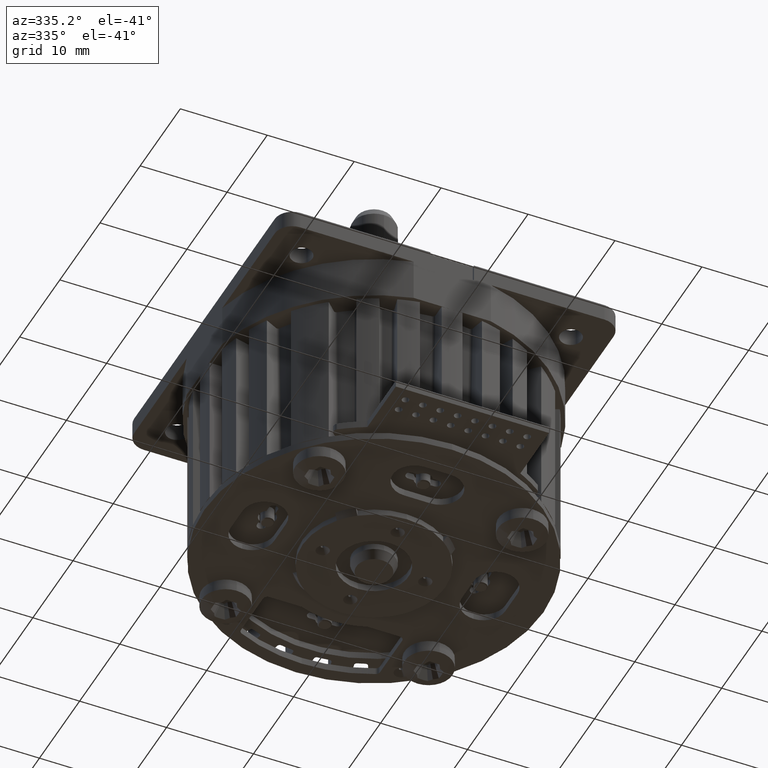
[diagram: clean part render]
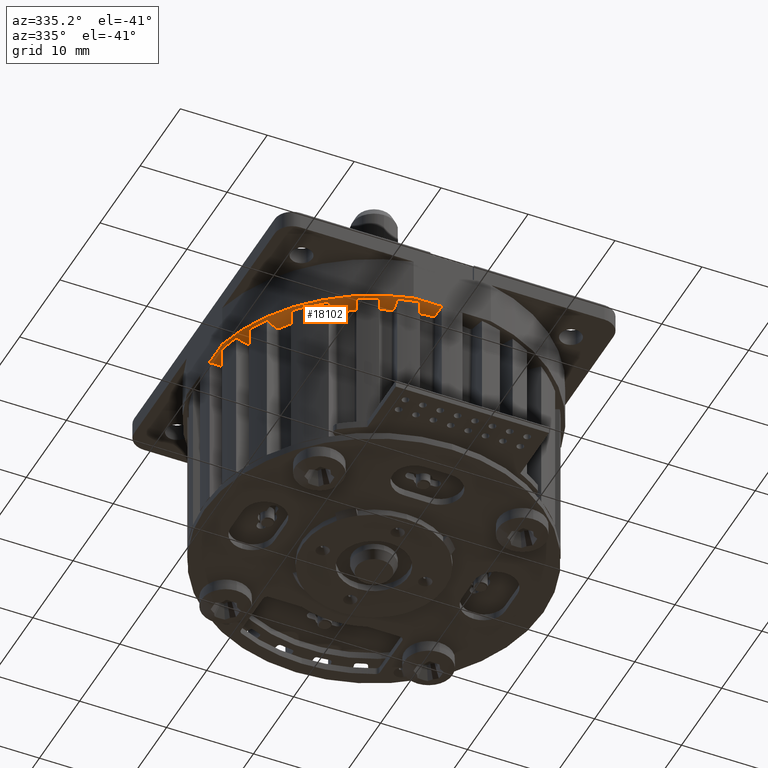
[diagram: same view with one face highlighted and labeled with its STEP entity id]
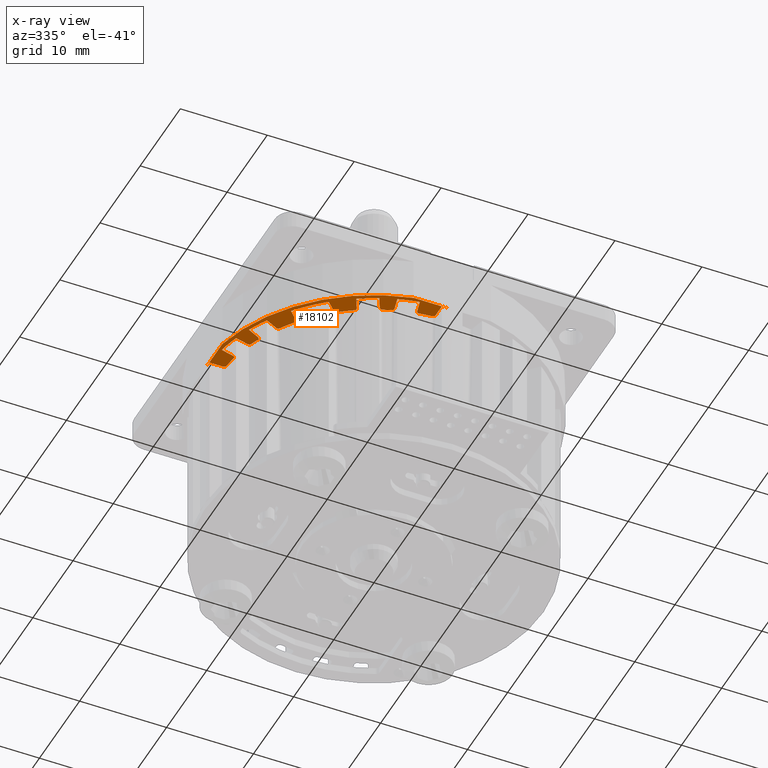
[diagram: x-ray of the same camera — body ghosted, the highlighted face saturated]
A machine part, auxiliary view. The second image highlights one B-rep face of the part: STEP entity #18102.
The next image is the same camera in x-ray: the body ghosted, the highlighted face saturated — about 0% of this face is hidden behind the body in this view.
In plain terms, the highlighted planar face has unit normal (0, 0, -1).
Its self-contained STEP definition (entity closure, byte-faithful):
#10437=CARTESIAN_POINT('',(-1.073479310697E1,-1.407234471778E1,
-4.999999638060E0));
#10438=CARTESIAN_POINT('',(-1.076387367828E1,-1.405019335004E1,
-4.999999638060E0));
#10439=CARTESIAN_POINT('',(-1.082617487131E1,-1.401871917246E1,
-5.000000172804E0));
#10440=CARTESIAN_POINT('',(-1.093729713080E1,-1.400431010619E1,
-4.999999938095E0));
#10441=CARTESIAN_POINT('',(-1.104553720968E1,-1.403341324764E1,
-5.000000074816E0));
#10442=CARTESIAN_POINT('',(-1.110303977929E1,-1.407297289651E1,
-4.999999866699E0));
#10443=CARTESIAN_POINT('',(-1.112889260806E1,-1.409883608382E1,
-4.999999866699E0));
#10461=CARTESIAN_POINT('',(0.E0,0.E0,-5.E0));
#10462=DIRECTION('',(0.E0,0.E0,-1.E0));
#10463=DIRECTION('',(-2.222048604329E-1,-9.75E-1,0.E0));
#10464=AXIS2_PLACEMENT_3D('',#10461,#10462,#10463);
#10466=CARTESIAN_POINT('',(0.E0,0.E0,-5.E0));
#10467=DIRECTION('',(0.E0,0.E0,1.E0));
#10468=DIRECTION('',(-6.153846153846E-2,-9.981047128190E-1,0.E0));
#10469=AXIS2_PLACEMENT_3D('',#10466,#10467,#10468);
#10471=CARTESIAN_POINT('',(0.E0,0.E0,-5.E0));
#10472=DIRECTION('',(0.E0,0.E0,1.E0));
#10473=DIRECTION('',(-1.619417234328E-1,-9.868003233743E-1,0.E0));
#10474=AXIS2_PLACEMENT_3D('',#10471,#10472,#10473);
#10476=DIRECTION('',(2.436394881490E-1,9.698658669190E-1,2.773570252438E-8));
#10477=VECTOR('',#10476,1.526227856595E0);
#10478=CARTESIAN_POINT('',(-3.577642763511E0,-1.916899768524E1,-5.E0));
#10479=LINE('',#10478,#10477);
#10480=CARTESIAN_POINT('',(0.E0,0.E0,-5.E0));
#10481=DIRECTION('',(0.E0,0.E0,1.E0));
#10482=DIRECTION('',(-3.028377230869E-1,-9.530421362540E-1,0.E0));
#10483=AXIS2_PLACEMENT_3D('',#10480,#10481,#10482);
#10485=DIRECTION('',(-2.435905350833E-1,-9.698781630792E-1,2.715573158838E-10));
#10486=VECTOR('',#10485,1.526225872660E0);
#10487=CARTESIAN_POINT('',(-5.533561423215E0,-1.710406851113E1,
-5.000000000414E0));
#10488=LINE('',#10487,#10486);
#10489=CARTESIAN_POINT('',(0.E0,0.E0,-5.E0));
#10490=DIRECTION('',(0.E0,0.E0,1.E0));
#10491=DIRECTION('',(-3.733054635073E-1,-9.277084838006E-1,0.E0));
#10492=AXIS2_PLACEMENT_3D('',#10489,#10490,#10491);
#10494=DIRECTION('',(4.493415442844E-1,8.933600486814E-1,2.773570252438E-8));
#10495=VECTOR('',#10494,1.526227856595E0);
#10496=CARTESIAN_POINT('',(-7.673068830521E0,-1.792690756160E1,-5.E0));
#10497=LINE('',#10496,#10495);
#10498=CARTESIAN_POINT('',(0.E0,0.E0,-5.E0));
#10499=DIRECTION('',(0.E0,0.E0,1.E0));
#10500=DIRECTION('',(-5.034441108978E-1,-8.640277930728E-1,0.E0));
#10501=AXIS2_PLACEMENT_3D('',#10498,#10499,#10500);
#10503=DIRECTION('',(-4.492964524912E-1,-8.933827274907E-1,2.715573158838E-10));
#10504=VECTOR('',#10503,1.526225872660E0);
#10505=CARTESIAN_POINT('',(-9.131432292221E0,-1.548503813204E1,
-5.000000000414E0));
#10506=LINE('',#10505,#10504);
#10507=CARTESIAN_POINT('',(0.E0,0.E0,-5.E0));
#10508=DIRECTION('',(0.E0,0.E0,1.E0));
#10509=DIRECTION('',(-6.065080698644E-1,-7.950773303204E-1,0.E0));
#10510=AXIS2_PLACEMENT_3D('',#10507,#10508,#10509);
#10512=DIRECTION('',(7.071374656646E-1,7.070760953769E-1,8.611779341366E-8));
#10513=VECTOR('',#10512,1.547895275173E0);
#10514=CARTESIAN_POINT('',(-1.222346735006E1,-1.519331583105E1,-5.E0));
#10515=LINE('',#10514,#10513);
#10516=CARTESIAN_POINT('',(0.E0,0.E0,-5.E0));
#10517=DIRECTION('',(0.E0,0.E0,1.E0));
#10518=DIRECTION('',(-7.791444015921E-1,-6.268444794904E-1,0.E0));
#10519=AXIS2_PLACEMENT_3D('',#10516,#10517,#10518);
#10521=DIRECTION('',(-7.070760945996E-1,-7.071374664419E-1,6.933917120530E-10));
#10522=VECTOR('',#10521,1.547889072592E0);
#10523=CARTESIAN_POINT('',(-1.409884047073E1,-1.112889699294E1,
-5.000000001073E0));
#10524=LINE('',#10523,#10522);
#10525=CARTESIAN_POINT('',(0.E0,0.E0,-5.E0));
#10526=DIRECTION('',(0.E0,0.E0,1.E0));
#10527=DIRECTION('',(-8.528190244465E-1,-5.222065793745E-1,0.E0));
#10528=AXIS2_PLACEMENT_3D('',#10525,#10526,#10527);
#10530=DIRECTION('',(8.933838182880E-1,4.492942835393E-1,3.333637125151E-8));
#10531=VECTOR('',#10530,1.526228255814E0);
#10532=CARTESIAN_POINT('',(-1.684854196492E1,-9.817160162507E0,-5.E0));
#10533=LINE('',#10532,#10531);
#10534=CARTESIAN_POINT('',(0.E0,0.E0,-5.E0));
#10535=DIRECTION('',(0.E0,0.E0,1.E0));
#10536=DIRECTION('',(-9.193285929025E-1,-3.934907092575E-1,0.E0));
#10537=AXIS2_PLACEMENT_3D('',#10534,#10535,#10536);
#10539=DIRECTION('',(-8.933589575720E-1,-4.493437135710E-1,2.908516783414E-10));
#10540=VECTOR('',#10539,1.526225873781E0);
#10541=CARTESIAN_POINT('',(-1.656344000598E1,-6.987268828648E0,
-5.000000000444E0));
#10542=LINE('',#10541,#10540);
#10543=CARTESIAN_POINT('',(0.E0,0.E0,-5.E0));
#10544=DIRECTION('',(0.E0,0.E0,1.E0));
#10545=DIRECTION('',(-9.461962167610E-1,-3.235934476889E-1,0.E0));
#10546=AXIS2_PLACEMENT_3D('',#10543,#10544,#10545);
#10548=DIRECTION('',(9.698787544643E-1,2.435881804167E-1,3.333637125151E-8));
#10549=VECTOR('',#10548,1.526228255814E0);
#10550=CARTESIAN_POINT('',(-1.858432165695E1,-5.905335600195E0,-5.E0));
#10551=LINE('',#10550,#10549);
#10552=CARTESIAN_POINT('',(0.E0,0.E0,-5.E0));
#10553=DIRECTION('',(0.E0,0.E0,1.E0));
#10554=DIRECTION('',(-9.830255223199E-1,-1.834688596672E-1,0.E0));
#10555=AXIS2_PLACEMENT_3D('',#10552,#10553,#10554);
#10557=DIRECTION('',(-9.698652753022E-1,-2.436418432104E-1,2.908534241742E-10));
#10558=VECTOR('',#10557,1.526225873781E0);
#10559=CARTESIAN_POINT('',(-1.768876420799E1,-3.205790278468E0,
-5.000000000444E0));
#10560=LINE('',#10559,#10558);
#10561=CARTESIAN_POINT('',(0.E0,0.E0,-5.E0));
#10562=DIRECTION('',(0.E0,0.E0,1.E0));
#10563=DIRECTION('',(-9.965214531774E-1,-8.333662674485E-2,0.E0));
#10564=AXIS2_PLACEMENT_3D('',#10561,#10562,#10563);
#10566=DIRECTION('',(9.999999996173E-1,-2.766475956627E-5,3.333637008763E-8));
#10567=VECTOR('',#10566,1.526228255814E0);
#10568=CARTESIAN_POINT('',(-1.946304189997E1,-1.2E0,-5.E0));
#10569=LINE('',#10568,#10567);
#10570=CARTESIAN_POINT('',(0.E0,0.E0,-5.E0));
#10571=DIRECTION('',(0.E0,0.E0,1.E0));
#10572=DIRECTION('',(-1.E0,-1.530248892080E-13,0.E0));
#10573=AXIS2_PLACEMENT_3D('',#10570,#10571,#10572);
#11905=CARTESIAN_POINT('',(-9.131432292221E0,-1.548503813204E1,
-5.000000000414E0));
#11906=CARTESIAN_POINT('',(-9.114399088966E0,-1.545118245200E1,
-5.000000000414E0));
#11907=CARTESIAN_POINT('',(-9.094754099932E0,-1.538179465488E1,
-5.000000007280E0));
#11908=CARTESIAN_POINT('',(-9.103343199877E0,-1.526579339755E1,
-4.999999973899E0));
#11909=CARTESIAN_POINT('',(-9.157204056181E0,-1.516273167602E1,
-5.000000097123E0));
#11910=CARTESIAN_POINT('',(-9.210427976773E0,-1.511412935526E1,
-4.999999790780E0));
#11911=CARTESIAN_POINT('',(-9.242715429713E0,-1.509434100489E1,
-4.999999790780E0));
#11937=CARTESIAN_POINT('',(-6.607263304628E0,-1.641983527634E1,
-4.999999789654E0));
#11938=CARTESIAN_POINT('',(-6.642409545309E0,-1.640570868908E1,
-4.999999789654E0));
#11939=CARTESIAN_POINT('',(-6.713178183967E0,-1.639195923733E1,
-5.000000099172E0));
#11940=CARTESIAN_POINT('',(-6.828033291732E0,-1.641017940111E1,
-4.999999968415E0));
#11941=CARTESIAN_POINT('',(-6.926269490864E0,-1.647245169778E1,
-5.000000027166E0));
#11942=CARTESIAN_POINT('',(-6.970249933340E0,-1.652958405164E1,
-4.999999957669E0));
#11943=CARTESIAN_POINT('',(-6.987271248508E0,-1.656343656933E1,
-4.999999957669E0));
#11967=CARTESIAN_POINT('',(-5.533561423215E0,-1.710406851113E1,
-5.000000000414E0));
#11968=CARTESIAN_POINT('',(-5.524323822432E0,-1.706731250733E1,
-5.000000000414E0));
#11969=CARTESIAN_POINT('',(-5.520288427322E0,-1.699531037147E1,
-5.000000007280E0));
#11970=CARTESIAN_POINT('',(-5.553975564210E0,-1.688397645413E1,
-4.999999973899E0));
#11971=CARTESIAN_POINT('',(-5.629021494688E0,-1.679514617435E1,
-5.000000097123E0));
#11972=CARTESIAN_POINT('',(-5.691565878719E0,-1.675932479341E1,
-4.999999790780E0));
#11973=CARTESIAN_POINT('',(-5.727392440135E0,-1.674705630024E1,
-4.999999790780E0));
#11999=CARTESIAN_POINT('',(-2.866262919152E0,-1.746572230848E1,
-4.999999789654E0));
#12000=CARTESIAN_POINT('',(-2.903644344086E0,-1.745960285005E1,
-4.999999789654E0));
#12001=CARTESIAN_POINT('',(-2.975707994743E0,-1.746162222985E1,
-5.000000099172E0));
#12002=CARTESIAN_POINT('',(-3.083822414020E0,-1.750445845859E1,
-4.999999968415E0));
#12003=CARTESIAN_POINT('',(-3.166108486738E0,-1.758666059961E1,
-5.000000027166E0));
#12004=CARTESIAN_POINT('',(-3.196566700887E0,-1.765201105768E1,
-4.999999957669E0));
#12005=CARTESIAN_POINT('',(-3.205793389732E0,-1.768876138199E1,
-4.999999957669E0));
#12029=CARTESIAN_POINT('',(-1.200038517307E0,-1.793681602780E1,
-5.000000000414E0));
#12030=CARTESIAN_POINT('',(-1.200033541119E0,-1.789891699009E1,
-5.000000000414E0));
#12031=CARTESIAN_POINT('',(-1.213660525508E0,-1.782810105065E1,
-5.000000007280E0));
#12032=CARTESIAN_POINT('',(-1.273455350435E0,-1.772832809212E1,
-4.999999973899E0));
#12033=CARTESIAN_POINT('',(-1.367880687921E0,-1.766045640489E1,
-5.000000097123E0));
#12034=CARTESIAN_POINT('',(-1.437267361847E0,-1.764095100082E1,
-4.999999790780E0));
#12035=CARTESIAN_POINT('',(-1.475003330277E0,-1.763778002080E1,
-4.999999790780E0));
#12045=DIRECTION('',(-2.523696400133E-5,9.999999996815E-1,-2.715573158838E-10));
#12046=VECTOR('',#12045,1.526225872660E0);
#12047=CARTESIAN_POINT('',(-1.2E0,-1.946304189997E1,-5.E0));
#12048=LINE('',#12047,#12046);
#12187=DIRECTION('',(1.E0,0.E0,0.E0));
#12188=VECTOR('',#12187,4.444097208658E0);
#12189=CARTESIAN_POINT('',(-4.444097208658E0,-1.95E1,-5.E0));
#12190=LINE('',#12189,#12188);
#12459=DIRECTION('',(0.E0,-1.E0,0.E0));
#12460=VECTOR('',#12459,4.444097208657E0);
#12461=CARTESIAN_POINT('',(-1.95E1,-1.096698333053E-12,-5.E0));
#12462=LINE('',#12461,#12460);
#12499=CARTESIAN_POINT('',(-1.763777902467E1,-1.475003872579E0,
-4.999999769317E0));
#12500=CARTESIAN_POINT('',(-1.764095204039E1,-1.437258002967E0,
-4.999999769317E0));
#12501=CARTESIAN_POINT('',(-1.766046566855E1,-1.367857256187E0,
-5.000000108920E0));
#12502=CARTESIAN_POINT('',(-1.772834984643E1,-1.273436221253E0,
-4.999999964805E0));
#12503=CARTESIAN_POINT('',(-1.782812168208E1,-1.213652941904E0,
-5.000000031861E0));
#12504=CARTESIAN_POINT('',(-1.789892277377E1,-1.200037669310E0,
-4.999999949121E0));
#12505=CARTESIAN_POINT('',(-1.793681364474E1,-1.200042222738E0,
-4.999999949121E0));
#12529=CARTESIAN_POINT('',(-1.768876420799E1,-3.205790278468E0,
-5.000000000444E0));
#12530=CARTESIAN_POINT('',(-1.765200566253E1,-3.196562796730E0,
-5.000000000444E0));
#12531=CARTESIAN_POINT('',(-1.758664183545E1,-3.166099112525E0,
-5.000000007984E0));
#12532=CARTESIAN_POINT('',(-1.750444229618E1,-3.083797785321E0,
-4.999999971389E0));
#12533=CARTESIAN_POINT('',(-1.746161845009E1,-2.975683109804E0,
-5.000000106459E0));
#12534=CARTESIAN_POINT('',(-1.745960511244E1,-2.903635303602E0,
-4.999999770669E0));
#12535=CARTESIAN_POINT('',(-1.746572125256E1,-2.866263505977E0,
-4.999999770669E0));
#12561=CARTESIAN_POINT('',(-1.674705520200E1,-5.727392723425E0,
-4.999999769317E0));
#12562=CARTESIAN_POINT('',(-1.675932808162E1,-5.691557055058E0,
-4.999999769317E0));
#12563=CARTESIAN_POINT('',(-1.679516086723E1,-5.629001025670E0,
-5.000000108920E0));
#12564=CARTESIAN_POINT('',(-1.688400221318E1,-5.553962311029E0,
-4.999999964805E0));
#12565=CARTESIAN_POINT('',(-1.699533222879E1,-5.520286098323E0,
-5.000000031861E0));
#12566=CARTESIAN_POINT('',(-1.706731711107E1,-5.524329235240E0,
-4.999999949121E0));
#12567=CARTESIAN_POINT('',(-1.710406529717E1,-5.533564436460E0,
-4.999999949121E0));
#12591=CARTESIAN_POINT('',(-1.656344000598E1,-6.987268828648E0,
-5.000000000444E0));
#12592=CARTESIAN_POINT('',(-1.652957963809E1,-6.970244946292E0,
-5.000000000444E0));
#12593=CARTESIAN_POINT('',(-1.647243543044E1,-6.926256249137E0,
-5.000000007984E0));
#12594=CARTESIAN_POINT('',(-1.641016900053E1,-6.828005730451E0,
-4.999999971389E0));
#12595=CARTESIAN_POINT('',(-1.639196097708E1,-6.713153073808E0,
-5.000000106459E0));
#12596=CARTESIAN_POINT('',(-1.640571286910E1,-6.642401216073E0,
-4.999999770669E0));
#12597=CARTESIAN_POINT('',(-1.641983411783E1,-6.607263646978E0,
-4.999999770669E0));
#12623=CARTESIAN_POINT('',(-1.509433987131E1,-9.242715466608E0,
-4.999999769317E0));
#12624=CARTESIAN_POINT('',(-1.511413448910E1,-9.210420082914E0,
-4.999999769317E0));
#12625=CARTESIAN_POINT('',(-1.516275048023E1,-9.157187285277E0,
-5.000000108920E0));
#12626=CARTESIAN_POINT('',(-1.526582142733E1,-9.103335885040E0,
-4.999999964805E0));
#12627=CARTESIAN_POINT('',(-1.538181649387E1,-9.094756595051E0,
-5.000000031861E0));
#12628=CARTESIAN_POINT('',(-1.545118576410E1,-9.114405375689E0,
-4.999999949121E0));
#12629=CARTESIAN_POINT('',(-1.548503433816E1,-9.131434531794E0,
-4.999999949121E0));
#12653=CARTESIAN_POINT('',(-1.409884047073E1,-1.112889699294E1,
-5.000000001073E0));
#12654=CARTESIAN_POINT('',(-1.407297093583E1,-1.110304102680E1,
-5.000000001073E0));
#12655=CARTESIAN_POINT('',(-1.403340372550E1,-1.104551983865E1,
-5.000000012355E0));
#12656=CARTESIAN_POINT('',(-1.400430841603E1,-1.093727336433E1,
-4.999999955146E0));
#12657=CARTESIAN_POINT('',(-1.401872656913E1,-1.082615471496E1,
-5.000000167061E0));
#12658=CARTESIAN_POINT('',(-1.405019827594E1,-1.076386763440E1,
-4.999999640095E0));
#12659=CARTESIAN_POINT('',(-1.407234429291E1,-1.073479366467E1,
-4.999999640095E0));
#16156=CARTESIAN_POINT('',(-3.577642763511E0,-1.916899768524E1,-5.E0));
#16158=VERTEX_POINT('',#16156);
#16177=CARTESIAN_POINT('',(-1.2E0,-1.946304189997E1,-5.E0));
#16179=VERTEX_POINT('',#16177);
#16189=CARTESIAN_POINT('',(-1.200038517307E0,-1.793681602780E1,
-5.000000000414E0));
#16191=VERTEX_POINT('',#16189);
#16206=CARTESIAN_POINT('',(-7.673068830521E0,-1.792690756160E1,-5.E0));
#16208=VERTEX_POINT('',#16206);
#16217=CARTESIAN_POINT('',(-9.817160162507E0,-1.684854196492E1,-5.E0));
#16219=VERTEX_POINT('',#16217);
#16222=CARTESIAN_POINT('',(-6.987271248508E0,-1.656343656933E1,
-4.999999957669E0));
#16224=VERTEX_POINT('',#16222);
#16225=CARTESIAN_POINT('',(-9.131432292221E0,-1.548503813204E1,
-5.000000000414E0));
#16227=VERTEX_POINT('',#16225);
#16229=CARTESIAN_POINT('',(-5.905335600195E0,-1.858432165695E1,-5.E0));
#16231=VERTEX_POINT('',#16229);
#16236=CARTESIAN_POINT('',(-3.205793389732E0,-1.768876138199E1,
-4.999999957669E0));
#16238=VERTEX_POINT('',#16236);
#16239=CARTESIAN_POINT('',(-5.533561423215E0,-1.710406851113E1,
-5.000000000414E0));
#16241=VERTEX_POINT('',#16239);
#16505=CARTESIAN_POINT('',(-1.95E1,-1.096698333053E-12,-5.E0));
#16506=VERTEX_POINT('',#16505);
#16507=CARTESIAN_POINT('',(-1.946304189997E1,-1.2E0,-5.E0));
#16508=VERTEX_POINT('',#16507);
#16555=CARTESIAN_POINT('',(8.760903243403E-14,-1.95E1,-5.E0));
#16556=VERTEX_POINT('',#16555);
#16680=VERTEX_POINT('',#12529);
#16681=VERTEX_POINT('',#12535);
#16682=CARTESIAN_POINT('',(-4.444097208658E0,-1.95E1,-5.E0));
#16683=CARTESIAN_POINT('',(-1.95E1,-4.444097208658E0,-5.E0));
#16684=VERTEX_POINT('',#16682);
#16685=VERTEX_POINT('',#16683);
#16694=CARTESIAN_POINT('',(-1.763778973217E1,-1.475004772679E0,-5.E0));
#16695=VERTEX_POINT('',#16694);
#16696=CARTESIAN_POINT('',(-1.793681364474E1,-1.200042222738E0,
-4.999999949121E0));
#16697=VERTEX_POINT('',#16696);
#16698=CARTESIAN_POINT('',(-1.916899768524E1,-3.577642763511E0,-5.E0));
#16699=VERTEX_POINT('',#16698);
#16700=CARTESIAN_POINT('',(-1.858432165695E1,-5.905335600195E0,-5.E0));
#16701=VERTEX_POINT('',#16700);
#16702=CARTESIAN_POINT('',(-1.710406529717E1,-5.533564436460E0,
-4.999999949121E0));
#16703=VERTEX_POINT('',#16702);
#16704=VERTEX_POINT('',#12561);
#16705=CARTESIAN_POINT('',(-1.641984436748E1,-6.607266958697E0,-5.E0));
#16706=VERTEX_POINT('',#16705);
#16707=VERTEX_POINT('',#12591);
#16708=CARTESIAN_POINT('',(-1.792690756160E1,-7.673068830520E0,-5.E0));
#16709=VERTEX_POINT('',#16708);
#16710=CARTESIAN_POINT('',(-1.684854196492E1,-9.817160162507E0,-5.E0));
#16711=VERTEX_POINT('',#16710);
#16712=CARTESIAN_POINT('',(-1.548503433816E1,-9.131434531794E0,
-4.999999949121E0));
#16713=VERTEX_POINT('',#16712);
#16714=VERTEX_POINT('',#12623);
#16715=CARTESIAN_POINT('',(-1.407235812966E1,-1.073480332312E1,-5.E0));
#16716=VERTEX_POINT('',#16715);
#16717=VERTEX_POINT('',#12653);
#16718=CARTESIAN_POINT('',(-1.519331583105E1,-1.222346735006E1,-5.E0));
#16719=VERTEX_POINT('',#16718);
#16720=CARTESIAN_POINT('',(-1.222346735006E1,-1.519331583105E1,-5.E0));
#16721=VERTEX_POINT('',#16720);
#16722=CARTESIAN_POINT('',(-1.112889260806E1,-1.409883608382E1,
-4.999999866699E0));
#16723=VERTEX_POINT('',#16722);
#16724=VERTEX_POINT('',#10437);
#16725=CARTESIAN_POINT('',(-9.242721081814E0,-1.509434903265E1,-5.E0));
#16726=VERTEX_POINT('',#16725);
#16727=VERTEX_POINT('',#11937);
#16728=CARTESIAN_POINT('',(-5.727396204914E0,-1.674706536763E1,-5.E0));
#16729=VERTEX_POINT('',#16728);
#16730=VERTEX_POINT('',#11999);
#16731=CARTESIAN_POINT('',(-1.475004772679E0,-1.763778973217E1,-5.E0));
#16732=VERTEX_POINT('',#16731);
#18020=CARTESIAN_POINT('',(0.E0,0.E0,-5.E0));
#18021=DIRECTION('',(0.E0,0.E0,-1.E0));
#18022=DIRECTION('',(-1.E0,0.E0,0.E0));
#18023=AXIS2_PLACEMENT_3D('',#18020,#18021,#18022);
#18024=PLANE('',#18023);
#18026=ORIENTED_EDGE('',*,*,#18025,.F.);
#18028=ORIENTED_EDGE('',*,*,#18027,.T.);
#18030=ORIENTED_EDGE('',*,*,#18029,.F.);
#18032=ORIENTED_EDGE('',*,*,#18031,.T.);
#18034=ORIENTED_EDGE('',*,*,#18033,.T.);
#18036=ORIENTED_EDGE('',*,*,#18035,.F.);
#18038=ORIENTED_EDGE('',*,*,#18037,.T.);
#18040=ORIENTED_EDGE('',*,*,#18039,.F.);
#18042=ORIENTED_EDGE('',*,*,#18041,.F.);
#18044=ORIENTED_EDGE('',*,*,#18043,.F.);
#18046=ORIENTED_EDGE('',*,*,#18045,.T.);
#18048=ORIENTED_EDGE('',*,*,#18047,.F.);
#18050=ORIENTED_EDGE('',*,*,#18049,.T.);
#18052=ORIENTED_EDGE('',*,*,#18051,.F.);
#18054=ORIENTED_EDGE('',*,*,#18053,.F.);
#18056=ORIENTED_EDGE('',*,*,#18055,.F.);
#18058=ORIENTED_EDGE('',*,*,#18057,.T.);
#18059=ORIENTED_EDGE('',*,*,#17954,.F.);
#18060=ORIENTED_EDGE('',*,*,#17972,.T.);
#18061=ORIENTED_EDGE('',*,*,#17986,.F.);
#18062=ORIENTED_EDGE('',*,*,#18000,.F.);
#18063=ORIENTED_EDGE('',*,*,#18011,.F.);
#18065=ORIENTED_EDGE('',*,*,#18064,.T.);
#18067=ORIENTED_EDGE('',*,*,#18066,.F.);
#18069=ORIENTED_EDGE('',*,*,#18068,.T.);
#18071=ORIENTED_EDGE('',*,*,#18070,.F.);
#18073=ORIENTED_EDGE('',*,*,#18072,.F.);
#18075=ORIENTED_EDGE('',*,*,#18074,.F.);
#18077=ORIENTED_EDGE('',*,*,#18076,.T.);
#18079=ORIENTED_EDGE('',*,*,#18078,.F.);
#18081=ORIENTED_EDGE('',*,*,#18080,.T.);
#18083=ORIENTED_EDGE('',*,*,#18082,.F.);
#18085=ORIENTED_EDGE('',*,*,#18084,.F.);
#18087=ORIENTED_EDGE('',*,*,#18086,.F.);
#18089=ORIENTED_EDGE('',*,*,#18088,.T.);
#18091=ORIENTED_EDGE('',*,*,#18090,.F.);
#18093=ORIENTED_EDGE('',*,*,#18092,.T.);
#18095=ORIENTED_EDGE('',*,*,#18094,.F.);
#18097=ORIENTED_EDGE('',*,*,#18096,.F.);
#18099=ORIENTED_EDGE('',*,*,#18098,.T.);
#18100=EDGE_LOOP('',(#18026,#18028,#18030,#18032,#18034,#18036,#18038,#18040,
#18042,#18044,#18046,#18048,#18050,#18052,#18054,#18056,#18058,#18059,#18060,
#18061,#18062,#18063,#18065,#18067,#18069,#18071,#18073,#18075,#18077,#18079,
#18081,#18083,#18085,#18087,#18089,#18091,#18093,#18095,#18097,#18099));
#18101=FACE_OUTER_BOUND('',#18100,.F.);
#18102=ADVANCED_FACE('',(#18101),#18024,.T.);
#10444=B_SPLINE_CURVE_WITH_KNOTS('',3,(#10437,#10438,#10439,#10440,#10441,
#10442,#10443),.UNSPECIFIED.,.F.,.F.,(4,1,1,1,4),(0.E0,2.5E-1,5.E-1,7.5E-1,
1.E0),.UNSPECIFIED.);
#10465=CIRCLE('',#10464,2.E1);
#10470=CIRCLE('',#10469,1.95E1);
#10475=CIRCLE('',#10474,1.769935777692E1);
#10484=CIRCLE('',#10483,1.95E1);
#10493=CIRCLE('',#10492,1.769935777692E1);
#10502=CIRCLE('',#10501,1.95E1);
#10511=CIRCLE('',#10510,1.769935777692E1);
#10520=CIRCLE('',#10519,1.95E1);
#10529=CIRCLE('',#10528,1.769935777692E1);
#10538=CIRCLE('',#10537,1.95E1);
#10547=CIRCLE('',#10546,1.769935777692E1);
#10556=CIRCLE('',#10555,1.95E1);
#10565=CIRCLE('',#10564,1.769935777692E1);
#10574=CIRCLE('',#10573,1.95E1);
#11912=B_SPLINE_CURVE_WITH_KNOTS('',3,(#11905,#11906,#11907,#11908,#11909,
#11910,#11911),.UNSPECIFIED.,.F.,.F.,(4,1,1,1,4),(0.E0,2.5E-1,5.E-1,7.5E-1,
1.E0),.UNSPECIFIED.);
#11944=B_SPLINE_CURVE_WITH_KNOTS('',3,(#11937,#11938,#11939,#11940,#11941,
#11942,#11943),.UNSPECIFIED.,.F.,.F.,(4,1,1,1,4),(0.E0,2.5E-1,5.E-1,7.5E-1,
1.E0),.UNSPECIFIED.);
#11974=B_SPLINE_CURVE_WITH_KNOTS('',3,(#11967,#11968,#11969,#11970,#11971,
#11972,#11973),.UNSPECIFIED.,.F.,.F.,(4,1,1,1,4),(0.E0,2.5E-1,5.E-1,7.5E-1,
1.E0),.UNSPECIFIED.);
#12006=B_SPLINE_CURVE_WITH_KNOTS('',3,(#11999,#12000,#12001,#12002,#12003,
#12004,#12005),.UNSPECIFIED.,.F.,.F.,(4,1,1,1,4),(0.E0,2.5E-1,5.E-1,7.5E-1,
1.E0),.UNSPECIFIED.);
#12036=B_SPLINE_CURVE_WITH_KNOTS('',3,(#12029,#12030,#12031,#12032,#12033,
#12034,#12035),.UNSPECIFIED.,.F.,.F.,(4,1,1,1,4),(0.E0,2.5E-1,5.E-1,7.5E-1,
1.E0),.UNSPECIFIED.);
#12506=B_SPLINE_CURVE_WITH_KNOTS('',3,(#12499,#12500,#12501,#12502,#12503,
#12504,#12505),.UNSPECIFIED.,.F.,.F.,(4,1,1,1,4),(0.E0,2.5E-1,5.E-1,7.5E-1,
1.E0),.UNSPECIFIED.);
#12536=B_SPLINE_CURVE_WITH_KNOTS('',3,(#12529,#12530,#12531,#12532,#12533,
#12534,#12535),.UNSPECIFIED.,.F.,.F.,(4,1,1,1,4),(0.E0,2.5E-1,5.E-1,7.5E-1,
1.E0),.UNSPECIFIED.);
#12568=B_SPLINE_CURVE_WITH_KNOTS('',3,(#12561,#12562,#12563,#12564,#12565,
#12566,#12567),.UNSPECIFIED.,.F.,.F.,(4,1,1,1,4),(0.E0,2.5E-1,5.E-1,7.5E-1,
1.E0),.UNSPECIFIED.);
#12598=B_SPLINE_CURVE_WITH_KNOTS('',3,(#12591,#12592,#12593,#12594,#12595,
#12596,#12597),.UNSPECIFIED.,.F.,.F.,(4,1,1,1,4),(0.E0,2.5E-1,5.E-1,7.5E-1,
1.E0),.UNSPECIFIED.);
#12630=B_SPLINE_CURVE_WITH_KNOTS('',3,(#12623,#12624,#12625,#12626,#12627,
#12628,#12629),.UNSPECIFIED.,.F.,.F.,(4,1,1,1,4),(0.E0,2.5E-1,5.E-1,7.5E-1,
1.E0),.UNSPECIFIED.);
#12660=B_SPLINE_CURVE_WITH_KNOTS('',3,(#12653,#12654,#12655,#12656,#12657,
#12658,#12659),.UNSPECIFIED.,.F.,.F.,(4,1,1,1,4),(0.E0,2.5E-1,5.E-1,7.5E-1,
1.E0),.UNSPECIFIED.);
#17954=EDGE_CURVE('',#16724,#16726,#10511,.T.);
#17972=EDGE_CURVE('',#16724,#16723,#10444,.T.);
#17986=EDGE_CURVE('',#16721,#16723,#10515,.T.);
#18000=EDGE_CURVE('',#16719,#16721,#10520,.T.);
#18011=EDGE_CURVE('',#16717,#16719,#10524,.T.);
#18025=EDGE_CURVE('',#16684,#16685,#10465,.T.);
#18027=EDGE_CURVE('',#16684,#16556,#12190,.T.);
#18029=EDGE_CURVE('',#16179,#16556,#10470,.T.);
#18031=EDGE_CURVE('',#16179,#16191,#12048,.T.);
#18033=EDGE_CURVE('',#16191,#16732,#12036,.T.);
#18035=EDGE_CURVE('',#16730,#16732,#10475,.T.);
#18037=EDGE_CURVE('',#16730,#16238,#12006,.T.);
#18039=EDGE_CURVE('',#16158,#16238,#10479,.T.);
#18041=EDGE_CURVE('',#16231,#16158,#10484,.T.);
#18043=EDGE_CURVE('',#16241,#16231,#10488,.T.);
#18045=EDGE_CURVE('',#16241,#16729,#11974,.T.);
#18047=EDGE_CURVE('',#16727,#16729,#10493,.T.);
#18049=EDGE_CURVE('',#16727,#16224,#11944,.T.);
#18051=EDGE_CURVE('',#16208,#16224,#10497,.T.);
#18053=EDGE_CURVE('',#16219,#16208,#10502,.T.);
#18055=EDGE_CURVE('',#16227,#16219,#10506,.T.);
#18057=EDGE_CURVE('',#16227,#16726,#11912,.T.);
#18064=EDGE_CURVE('',#16717,#16716,#12660,.T.);
#18066=EDGE_CURVE('',#16714,#16716,#10529,.T.);
#18068=EDGE_CURVE('',#16714,#16713,#12630,.T.);
#18070=EDGE_CURVE('',#16711,#16713,#10533,.T.);
#18072=EDGE_CURVE('',#16709,#16711,#10538,.T.);
#18074=EDGE_CURVE('',#16707,#16709,#10542,.T.);
#18076=EDGE_CURVE('',#16707,#16706,#12598,.T.);
#18078=EDGE_CURVE('',#16704,#16706,#10547,.T.);
#18080=EDGE_CURVE('',#16704,#16703,#12568,.T.);
#18082=EDGE_CURVE('',#16701,#16703,#10551,.T.);
#18084=EDGE_CURVE('',#16699,#16701,#10556,.T.);
#18086=EDGE_CURVE('',#16680,#16699,#10560,.T.);
#18088=EDGE_CURVE('',#16680,#16681,#12536,.T.);
#18090=EDGE_CURVE('',#16695,#16681,#10565,.T.);
#18092=EDGE_CURVE('',#16695,#16697,#12506,.T.);
#18094=EDGE_CURVE('',#16508,#16697,#10569,.T.);
#18096=EDGE_CURVE('',#16506,#16508,#10574,.T.);
#18098=EDGE_CURVE('',#16506,#16685,#12462,.T.);